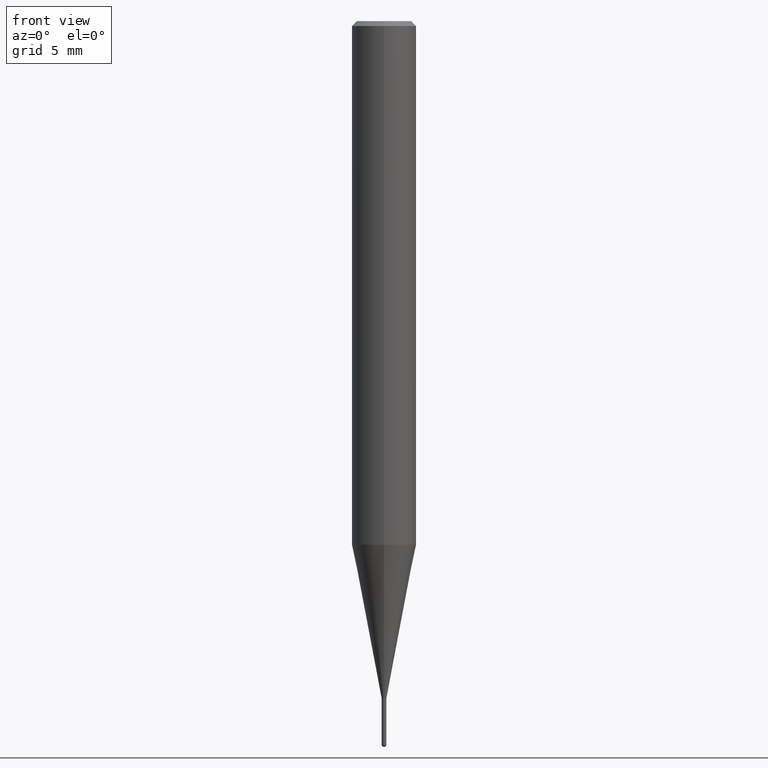
[diagram: clean part render]
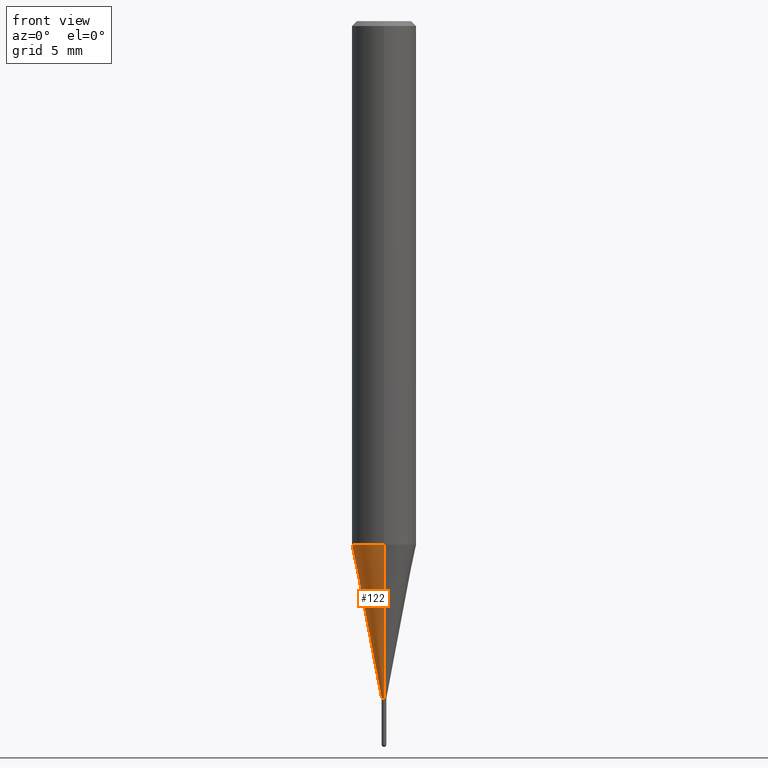
[diagram: same view with one face highlighted and labeled with its STEP entity id]
A machine part, front view. The second image highlights one B-rep face of the part: STEP entity #122.
In plain terms, the highlighted conical surface has half-angle 11 deg.
Its self-contained STEP definition (entity closure, byte-faithful):
#96=EDGE_CURVE('',#178,#204,#237,.T.);
#122=ADVANCED_FACE('',(#268),#269,.T.);
#126=EDGE_CURVE('',#180,#204,#274,.T.);
#138=VERTEX_POINT('',#288);
#178=VERTEX_POINT('',#332);
#180=VERTEX_POINT('',#334);
#188=EDGE_CURVE('',#178,#138,#343,.T.);
#202=EDGE_CURVE('',#138,#180,#360,.T.);
#204=VERTEX_POINT('',#362);
#237=CIRCLE('',#388,0.14495);
#268=FACE_OUTER_BOUND('',#425,.T.);
#269=CONICAL_SURFACE('',#426,1.07245,0.19198911666217);
#274=LINE('',#432,#433);
#288=CARTESIAN_POINT('',(2.44915147732706E-016,-1.99995,-32.457));
#332=CARTESIAN_POINT('',(1.77506690986554E-017,-0.14495,-42.0));
#334=CARTESIAN_POINT('',(0.0,1.99995,-32.457));
#343=LINE('',#521,#522);
#360=CIRCLE('',#541,1.99995);
#362=CARTESIAN_POINT('',(0.0,0.14495,-42.0));
#388=AXIS2_PLACEMENT_3D('',#559,#560,#561);
#425=EDGE_LOOP('',(#604,#605,#606,#607));
#426=AXIS2_PLACEMENT_3D('',#608,#609,#610);
#432=CARTESIAN_POINT('',(-1.31332908415681E-016,1.07245,-37.2285));
#433=VECTOR('',#619,1.0);
#521=CARTESIAN_POINT('',(1.31332908415681E-016,-1.07245,-37.2285));
#522=VECTOR('',#702,1.0);
#541=AXIS2_PLACEMENT_3D('',#726,#727,#728);
#559=CARTESIAN_POINT('',(0.0,0.0,-42.0));
#560=DIRECTION('',(0.0,0.0,-1.0));
#561=DIRECTION('',(0.0,1.0,0.0));
#604=ORIENTED_EDGE('',*,*,#126,.T.);
#605=ORIENTED_EDGE('',*,*,#96,.F.);
#606=ORIENTED_EDGE('',*,*,#188,.T.);
#607=ORIENTED_EDGE('',*,*,#202,.T.);
#608=CARTESIAN_POINT('',(0.0,0.0,-37.2285));
#609=DIRECTION('',(-0.0,-0.0,1.0));
#610=DIRECTION('',(0.0,1.0,0.0));
#619=DIRECTION('',(2.33669392942694E-017,-0.190811841056793,-0.981626630299177));
#702=DIRECTION('',(2.33669392942694E-017,-0.190811841056793,0.981626630299177));
#726=CARTESIAN_POINT('',(0.0,0.0,-32.457));
#727=DIRECTION('',(0.0,0.0,-1.0));
#728=DIRECTION('',(0.0,1.0,0.0));